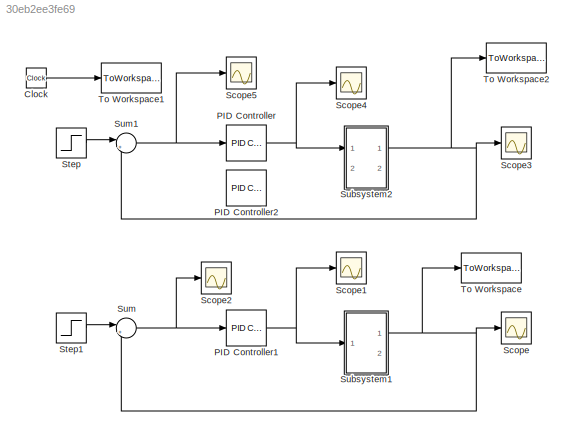
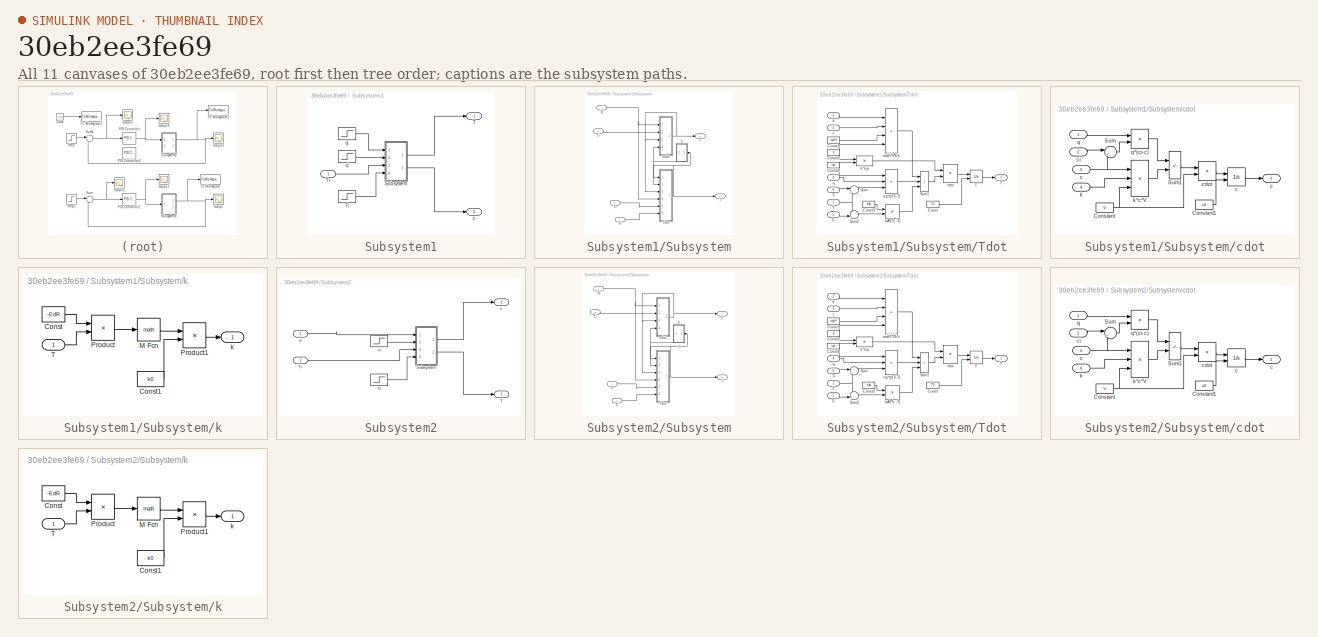
[diagram: thumbnail index - all 11 canvases of the model, root first then tree order]
MODEL slx_30eb2ee3fe69
KIND model
CONFIG AbsTol = auto
CONFIG EnableMultiTasking = off
CONFIG FixedStep = 0.001
CONFIG MaxStep = auto
CONFIG MinStep = auto
CONFIG RelTol = 1e-6
CONFIG SampleTimeConstraint = Unconstrained
CONFIG SolverName = FixedStepAuto
CONFIG StartTime = 0.0
CONFIG StopTime = 20
BLOCK [Clock] Clock
BLOCK [Reference] PID Controller  REF=pid_lib/PID Controller
  Ports = [1, 1]
  SourceBlock = pid_lib/PID Controller
  SourceProductBaseCode = SL
  SourceType = PID 1dof
BLOCK [Reference] PID Controller1  REF=pid_lib/PID Controller
  Ports = [1, 1]
  SourceBlock = pid_lib/PID Controller
  SourceProductBaseCode = SL
  SourceType = PID 1dof
BLOCK [Reference] PID Controller2  REF=pid_lib/PID Controller
  Ports = [1, 1]
  SourceBlock = pid_lib/PID Controller
  SourceProductBaseCode = SL
  SourceType = PID 1dof
BLOCK [Scope] Scope
  Floating = off
  NumInputPorts = 1
  Ports = [1]
  ScopeSpecificationString = Simulink.scopes.TimeScopeBlockCfg('CurrentConfiguration', extmgr.ConfigurationSet(extmgr.Configuration('Core','General UI',true),extmgr.Configuration('Core','Source UI',true),extmgr.Configuration('Sources','WiredSimulink',true,'DataLoggingSaveFormat','StructureWithTime','DataLoggingDecimation','1','DataLoggingDecimateData',true),extmgr.Configuration('Visuals','Time Domain',true,'SerializedDisplays...<+1740ch>
BLOCK [Scope] Scope1
  Floating = off
  NumInputPorts = 1
  Ports = [1]
  ScopeSpecificationString = Simulink.scopes.TimeScopeBlockCfg('CurrentConfiguration', extmgr.ConfigurationSet(extmgr.Configuration('Core','General UI',true),extmgr.Configuration('Core','Source UI',true),extmgr.Configuration('Sources','WiredSimulink',true,'DataLoggingSaveFormat','StructureWithTime','DataLoggingLimitDataPoints',true,'DataLoggingDecimation','1','DataLoggingDecimateData',true,'DataLoggingVariableName','ScopeData...<+1825ch>
BLOCK [Scope] Scope2
  Floating = off
  NumInputPorts = 1
  Ports = [1]
  ScopeSpecificationString = Simulink.scopes.TimeScopeBlockCfg('CurrentConfiguration', extmgr.ConfigurationSet(extmgr.Configuration('Core','General UI',true),extmgr.Configuration('Core','Source UI',true),extmgr.Configuration('Sources','WiredSimulink',true,'DataLoggingSaveFormat','StructureWithTime','DataLoggingLimitDataPoints',true,'DataLoggingDecimation','1','DataLoggingDecimateData',true,'DataLoggingVariableName','ScopeData...<+1811ch>
BLOCK [Scope] Scope3
  Floating = off
  NumInputPorts = 1
  Ports = [1]
  ScopeSpecificationString = Simulink.scopes.TimeScopeBlockCfg('CurrentConfiguration', extmgr.ConfigurationSet(extmgr.Configuration('Core','General UI',true),extmgr.Configuration('Core','Source UI',true),extmgr.Configuration('Sources','WiredSimulink',true,'DataLoggingSaveFormat','StructureWithTime','DataLoggingDecimation','1','DataLoggingDecimateData',true,'DataLoggingVariableName','ScopeData1'),extmgr.Configuration('Visuals'...<+1769ch>
BLOCK [Scope] Scope4
  Floating = off
  NumInputPorts = 1
  Ports = [1]
  ScopeSpecificationString = Simulink.scopes.TimeScopeBlockCfg('CurrentConfiguration', extmgr.ConfigurationSet(extmgr.Configuration('Core','General UI',true),extmgr.Configuration('Core','Source UI',true),extmgr.Configuration('Sources','WiredSimulink',true,'DataLoggingSaveFormat','StructureWithTime','DataLoggingLimitDataPoints',true,'DataLoggingDecimation','1','DataLoggingDecimateData',true,'DataLoggingVariableName','ScopeData...<+1817ch>
BLOCK [Scope] Scope5
  Floating = off
  NumInputPorts = 1
  Ports = [1]
  ScopeSpecificationString = Simulink.scopes.TimeScopeBlockCfg('CurrentConfiguration', extmgr.ConfigurationSet(extmgr.Configuration('Core','General UI',true),extmgr.Configuration('Core','Source UI',true),extmgr.Configuration('Sources','WiredSimulink',true,'DataLoggingSaveFormat','StructureWithTime','DataLoggingLimitDataPoints',true,'DataLoggingDecimation','1','DataLoggingDecimateData',true,'DataLoggingVariableName','ScopeData...<+1797ch>
BLOCK [Step] Step
  After = c0+0.1
  Before = c0
  SampleTime = 0
  Time = 0
BLOCK [Step] Step1
  After = c0+0.1
  Before = c0
  SampleTime = 0
  Time = 0
BLOCK [SubSystem] Subsystem1
  Ports = [1, 2]
  RequestExecContextInheritance = off
BLOCK [SubSystem] Subsystem1/Subsystem
  Ports = [4, 2]
  RequestExecContextInheritance = off
BLOCK [Outport] Subsystem1/Subsystem/T  
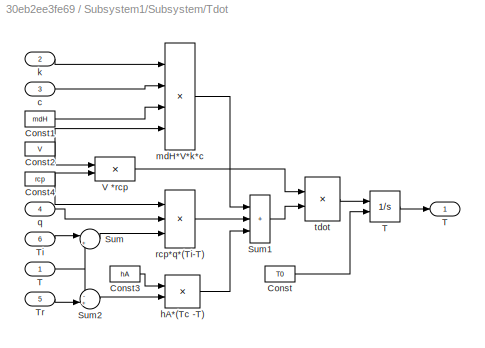
BLOCK [SubSystem] Subsystem1/Subsystem/Tdot
  Ports = [6, 1]
  RequestExecContextInheritance = off
BLOCK [Constant] Subsystem1/Subsystem/Tdot/Const
  Value = T0
BLOCK [Constant] Subsystem1/Subsystem/Tdot/Const1
  Value = mdH
BLOCK [Constant] Subsystem1/Subsystem/Tdot/Const2
  Value = V
BLOCK [Constant] Subsystem1/Subsystem/Tdot/Const3
  Value = hA
BLOCK [Constant] Subsystem1/Subsystem/Tdot/Const4
  Value = rcp
BLOCK [Sum] Subsystem1/Subsystem/Tdot/Sum
  InputSameDT = on
  Inputs = |+-
  OutDataTypeStr = Inherit: Same as first input
  Ports = [2, 1]
  SaturateOnIntegerOverflow = on
BLOCK [Sum] Subsystem1/Subsystem/Tdot/Sum1
  IconShape = rectangular
  InputSameDT = on
  Inputs = +++
  OutDataTypeStr = Inherit: Same as first input
  Ports = [3, 1]
  SaturateOnIntegerOverflow = on
BLOCK [Sum] Subsystem1/Subsystem/Tdot/Sum2
  InputSameDT = on
  Inputs = -+|
  OutDataTypeStr = Inherit: Same as first input
  Ports = [2, 1]
  SaturateOnIntegerOverflow = on
BLOCK [Inport] Subsystem1/Subsystem/Tdot/T
  Interpolate = off
  SignalType = real
BLOCK [Integrator] Subsystem1/Subsystem/Tdot/T 
  InitialConditionSource = external
  Ports = [2, 1]
BLOCK [Outport] Subsystem1/Subsystem/Tdot/T  
BLOCK [Inport] Subsystem1/Subsystem/Tdot/Ti
  Interpolate = off
  Port = 6
  SignalType = real
BLOCK [Inport] Subsystem1/Subsystem/Tdot/Tr
  Interpolate = off
  Port = 5
  SignalType = real
BLOCK [Product] Subsystem1/Subsystem/Tdot/V *rcp
  InputSameDT = on
  Inputs = **
  OutDataTypeStr = Inherit: Same as first input
  Ports = [2, 1]
  RndMeth = Zero
  SaturateOnIntegerOverflow = on
BLOCK [Inport] Subsystem1/Subsystem/Tdot/c
  Interpolate = off
  Port = 3
  SignalType = real
BLOCK [Product] Subsystem1/Subsystem/Tdot/hA*(Tc -T)
  InputSameDT = on
  Inputs = **
  OutDataTypeStr = Inherit: Same as first input
  Ports = [2, 1]
  RndMeth = Zero
  SaturateOnIntegerOverflow = on
BLOCK [Inport] Subsystem1/Subsystem/Tdot/k
  Interpolate = off
  Port = 2
  SignalType = real
BLOCK [Product] Subsystem1/Subsystem/Tdot/mdH*V*k*c
  InputSameDT = on
  Inputs = ****
  OutDataTypeStr = Inherit: Same as first input
  Ports = [4, 1]
  RndMeth = Zero
  SaturateOnIntegerOverflow = on
BLOCK [Inport] Subsystem1/Subsystem/Tdot/q
  Interpolate = off
  Port = 4
  SignalType = real
BLOCK [Product] Subsystem1/Subsystem/Tdot/rcp*q*(Ti-T)
  InputSameDT = on
  Inputs = ***
  OutDataTypeStr = Inherit: Same as first input
  Ports = [3, 1]
  RndMeth = Zero
  SaturateOnIntegerOverflow = on
BLOCK [Product] Subsystem1/Subsystem/Tdot/tdot
  InputSameDT = on
  Inputs = /*
  OutDataTypeStr = Inherit: Same as first input
  Ports = [2, 1]
  RndMeth = Zero
  SaturateOnIntegerOverflow = on
BLOCK [Inport] Subsystem1/Subsystem/Ti
  Port = 4
BLOCK [Inport] Subsystem1/Subsystem/Tr
  Port = 3
BLOCK [Outport] Subsystem1/Subsystem/c   
  Port = 2
BLOCK [SubSystem] Subsystem1/Subsystem/cdot
  Ports = [4, 1]
  RequestExecContextInheritance = off
BLOCK [Constant] Subsystem1/Subsystem/cdot/Constant
  Value = V
BLOCK [Constant] Subsystem1/Subsystem/cdot/Constant1
  Value = c0
BLOCK [Sum] Subsystem1/Subsystem/cdot/Sum
  InputSameDT = on
  Inputs = |+-
  OutDataTypeStr = Inherit: Same as first input
  Ports = [2, 1]
  SaturateOnIntegerOverflow = on
BLOCK [Sum] Subsystem1/Subsystem/cdot/Sum1
  IconShape = rectangular
  InputSameDT = on
  Inputs = +-
  OutDataTypeStr = Inherit: Same as first input
  Ports = [2, 1]
  SaturateOnIntegerOverflow = on
BLOCK [Outport] Subsystem1/Subsystem/cdot/c
BLOCK [Integrator] Subsystem1/Subsystem/cdot/c 
  InitialConditionSource = external
  Ports = [2, 1]
BLOCK [Inport] Subsystem1/Subsystem/cdot/c  
  Interpolate = off
  Port = 3
  SignalType = real
BLOCK [Product] Subsystem1/Subsystem/cdot/cdot
  InputSameDT = on
  Inputs = */
  OutDataTypeStr = Inherit: Same as first input
  Ports = [2, 1]
  RndMeth = Zero
  SaturateOnIntegerOverflow = on
BLOCK [Inport] Subsystem1/Subsystem/cdot/ci
  Interpolate = off
  Port = 2
  SignalType = real
BLOCK [Inport] Subsystem1/Subsystem/cdot/k
  Interpolate = off
  Port = 4
  SignalType = real
BLOCK [Product] Subsystem1/Subsystem/cdot/k*c*V
  InputSameDT = on
  Inputs = ***
  OutDataTypeStr = Inherit: Same as first input
  Ports = [3, 1]
  RndMeth = Zero
  SaturateOnIntegerOverflow = on
BLOCK [Inport] Subsystem1/Subsystem/cdot/q
  Interpolate = off
  SignalType = real
BLOCK [Product] Subsystem1/Subsystem/cdot/q*(ci-c)
  InputSameDT = on
  Inputs = **
  OutDataTypeStr = Inherit: Same as first input
  Ports = [2, 1]
  RndMeth = Zero
  SaturateOnIntegerOverflow = on
BLOCK [Inport] Subsystem1/Subsystem/ci
  Port = 2
BLOCK [SubSystem] Subsystem1/Subsystem/k
  Ports = [1, 1]
  RequestExecContextInheritance = off
BLOCK [Constant] Subsystem1/Subsystem/k/Const
  Value = -EdR
BLOCK [Constant] Subsystem1/Subsystem/k/Const1
  Value = k0
BLOCK [Math] Subsystem1/Subsystem/k/M Fcn
  Ports = [1, 1]
  SignedPower = on
BLOCK [Product] Subsystem1/Subsystem/k/Product
  InputSameDT = on
  Inputs = */
  OutDataTypeStr = Inherit: Same as first input
  Ports = [2, 1]
  RndMeth = Zero
  SaturateOnIntegerOverflow = on
BLOCK [Product] Subsystem1/Subsystem/k/Product1
  InputSameDT = on
  Inputs = **
  OutDataTypeStr = Inherit: Same as first input
  Ports = [2, 1]
  RndMeth = Zero
  SaturateOnIntegerOverflow = on
BLOCK [Inport] Subsystem1/Subsystem/k/T
  Interpolate = off
  SignalType = real
BLOCK [Outport] Subsystem1/Subsystem/k/k
BLOCK [Inport] Subsystem1/Subsystem/q
BLOCK [Outport] Subsystem1/T   
BLOCK [Step] Subsystem1/Ti
  After = Ti
  Before = Ti
  SampleTime = 0
  Time = 0
BLOCK [Inport] Subsystem1/Tr
BLOCK [Outport] Subsystem1/c     
  Port = 2
BLOCK [Step] Subsystem1/ci
  After = ci
  Before = ci
  SampleTime = 0
  Time = 0
BLOCK [Step] Subsystem1/q  
  After = q
  Before = q
  SampleTime = 0
  Time = 0
BLOCK [SubSystem] Subsystem2
  Ports = [2, 2]
  RequestExecContextInheritance = off
BLOCK [SubSystem] Subsystem2/Subsystem
  Ports = [4, 2]
  RequestExecContextInheritance = off
BLOCK [Outport] Subsystem2/Subsystem/T  
  Port = 2
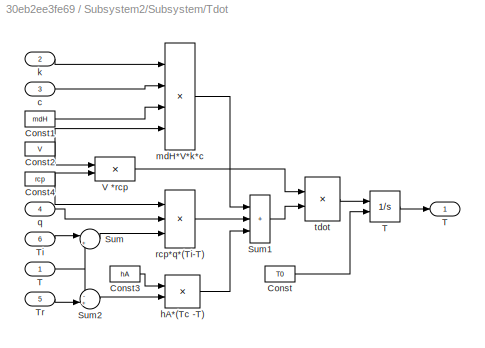
BLOCK [SubSystem] Subsystem2/Subsystem/Tdot
  Ports = [6, 1]
  RequestExecContextInheritance = off
BLOCK [Constant] Subsystem2/Subsystem/Tdot/Const
  Value = T0
BLOCK [Constant] Subsystem2/Subsystem/Tdot/Const1
  Value = mdH
BLOCK [Constant] Subsystem2/Subsystem/Tdot/Const2
  Value = V
BLOCK [Constant] Subsystem2/Subsystem/Tdot/Const3
  Value = hA
BLOCK [Constant] Subsystem2/Subsystem/Tdot/Const4
  Value = rcp
BLOCK [Sum] Subsystem2/Subsystem/Tdot/Sum
  InputSameDT = on
  Inputs = |+-
  OutDataTypeStr = Inherit: Same as first input
  Ports = [2, 1]
  SaturateOnIntegerOverflow = on
BLOCK [Sum] Subsystem2/Subsystem/Tdot/Sum1
  IconShape = rectangular
  InputSameDT = on
  Inputs = +++
  OutDataTypeStr = Inherit: Same as first input
  Ports = [3, 1]
  SaturateOnIntegerOverflow = on
BLOCK [Sum] Subsystem2/Subsystem/Tdot/Sum2
  InputSameDT = on
  Inputs = -+|
  OutDataTypeStr = Inherit: Same as first input
  Ports = [2, 1]
  SaturateOnIntegerOverflow = on
BLOCK [Inport] Subsystem2/Subsystem/Tdot/T
  Interpolate = off
  SignalType = real
BLOCK [Integrator] Subsystem2/Subsystem/Tdot/T 
  InitialConditionSource = external
  Ports = [2, 1]
BLOCK [Outport] Subsystem2/Subsystem/Tdot/T  
BLOCK [Inport] Subsystem2/Subsystem/Tdot/Ti
  Interpolate = off
  Port = 6
  SignalType = real
BLOCK [Inport] Subsystem2/Subsystem/Tdot/Tr
  Interpolate = off
  Port = 5
  SignalType = real
BLOCK [Product] Subsystem2/Subsystem/Tdot/V *rcp
  InputSameDT = on
  Inputs = **
  OutDataTypeStr = Inherit: Same as first input
  Ports = [2, 1]
  RndMeth = Zero
  SaturateOnIntegerOverflow = on
BLOCK [Inport] Subsystem2/Subsystem/Tdot/c
  Interpolate = off
  Port = 3
  SignalType = real
BLOCK [Product] Subsystem2/Subsystem/Tdot/hA*(Tc -T)
  InputSameDT = on
  Inputs = **
  OutDataTypeStr = Inherit: Same as first input
  Ports = [2, 1]
  RndMeth = Zero
  SaturateOnIntegerOverflow = on
BLOCK [Inport] Subsystem2/Subsystem/Tdot/k
  Interpolate = off
  Port = 2
  SignalType = real
BLOCK [Product] Subsystem2/Subsystem/Tdot/mdH*V*k*c
  InputSameDT = on
  Inputs = ****
  OutDataTypeStr = Inherit: Same as first input
  Ports = [4, 1]
  RndMeth = Zero
  SaturateOnIntegerOverflow = on
BLOCK [Inport] Subsystem2/Subsystem/Tdot/q
  Interpolate = off
  Port = 4
  SignalType = real
BLOCK [Product] Subsystem2/Subsystem/Tdot/rcp*q*(Ti-T)
  InputSameDT = on
  Inputs = ***
  OutDataTypeStr = Inherit: Same as first input
  Ports = [3, 1]
  RndMeth = Zero
  SaturateOnIntegerOverflow = on
BLOCK [Product] Subsystem2/Subsystem/Tdot/tdot
  InputSameDT = on
  Inputs = /*
  OutDataTypeStr = Inherit: Same as first input
  Ports = [2, 1]
  RndMeth = Zero
  SaturateOnIntegerOverflow = on
BLOCK [Inport] Subsystem2/Subsystem/Ti
  Port = 4
BLOCK [Inport] Subsystem2/Subsystem/Tr
  Port = 3
BLOCK [Outport] Subsystem2/Subsystem/c
BLOCK [SubSystem] Subsystem2/Subsystem/cdot
  Ports = [4, 1]
  RequestExecContextInheritance = off
BLOCK [Constant] Subsystem2/Subsystem/cdot/Constant
  Value = V
BLOCK [Constant] Subsystem2/Subsystem/cdot/Constant1
  Value = c0
BLOCK [Sum] Subsystem2/Subsystem/cdot/Sum
  InputSameDT = on
  Inputs = |+-
  OutDataTypeStr = Inherit: Same as first input
  Ports = [2, 1]
  SaturateOnIntegerOverflow = on
BLOCK [Sum] Subsystem2/Subsystem/cdot/Sum1
  IconShape = rectangular
  InputSameDT = on
  Inputs = +-
  OutDataTypeStr = Inherit: Same as first input
  Ports = [2, 1]
  SaturateOnIntegerOverflow = on
BLOCK [Outport] Subsystem2/Subsystem/cdot/c
BLOCK [Integrator] Subsystem2/Subsystem/cdot/c 
  InitialConditionSource = external
  Ports = [2, 1]
BLOCK [Inport] Subsystem2/Subsystem/cdot/c  
  Interpolate = off
  Port = 3
  SignalType = real
BLOCK [Product] Subsystem2/Subsystem/cdot/cdot
  InputSameDT = on
  Inputs = */
  OutDataTypeStr = Inherit: Same as first input
  Ports = [2, 1]
  RndMeth = Zero
  SaturateOnIntegerOverflow = on
BLOCK [Inport] Subsystem2/Subsystem/cdot/ci
  Interpolate = off
  Port = 2
  SignalType = real
BLOCK [Inport] Subsystem2/Subsystem/cdot/k
  Interpolate = off
  Port = 4
  SignalType = real
BLOCK [Product] Subsystem2/Subsystem/cdot/k*c*V
  InputSameDT = on
  Inputs = ***
  OutDataTypeStr = Inherit: Same as first input
  Ports = [3, 1]
  RndMeth = Zero
  SaturateOnIntegerOverflow = on
BLOCK [Inport] Subsystem2/Subsystem/cdot/q
  Interpolate = off
  SignalType = real
BLOCK [Product] Subsystem2/Subsystem/cdot/q*(ci-c)
  InputSameDT = on
  Inputs = **
  OutDataTypeStr = Inherit: Same as first input
  Ports = [2, 1]
  RndMeth = Zero
  SaturateOnIntegerOverflow = on
BLOCK [Inport] Subsystem2/Subsystem/ci
  Port = 2
BLOCK [SubSystem] Subsystem2/Subsystem/k
  Ports = [1, 1]
  RequestExecContextInheritance = off
BLOCK [Constant] Subsystem2/Subsystem/k/Const
  Value = -EdR
BLOCK [Constant] Subsystem2/Subsystem/k/Const1
  Value = k0
BLOCK [Math] Subsystem2/Subsystem/k/M Fcn
  Ports = [1, 1]
  SignedPower = on
BLOCK [Product] Subsystem2/Subsystem/k/Product
  InputSameDT = on
  Inputs = */
  OutDataTypeStr = Inherit: Same as first input
  Ports = [2, 1]
  RndMeth = Zero
  SaturateOnIntegerOverflow = on
BLOCK [Product] Subsystem2/Subsystem/k/Product1
  InputSameDT = on
  Inputs = **
  OutDataTypeStr = Inherit: Same as first input
  Ports = [2, 1]
  RndMeth = Zero
  SaturateOnIntegerOverflow = on
BLOCK [Inport] Subsystem2/Subsystem/k/T
  Interpolate = off
  SignalType = real
BLOCK [Outport] Subsystem2/Subsystem/k/k
BLOCK [Inport] Subsystem2/Subsystem/q
BLOCK [Outport] Subsystem2/T  
  Port = 2
BLOCK [Step] Subsystem2/Ti
  After = Ti
  Before = Ti
  SampleTime = 0
  Time = 0
BLOCK [Inport] Subsystem2/Tr
  Port = 2
BLOCK [Outport] Subsystem2/c
BLOCK [Step] Subsystem2/ci
  After = ci
  Before = ci
  SampleTime = 0
  Time = 0
BLOCK [Inport] Subsystem2/q
BLOCK [Sum] Sum
  InputSameDT = on
  Inputs = |+-
  OutDataTypeStr = Inherit: Same as first input
  Ports = [2, 1]
  SaturateOnIntegerOverflow = on
BLOCK [Sum] Sum1
  InputSameDT = on
  Inputs = |+-
  OutDataTypeStr = Inherit: Same as first input
  Ports = [2, 1]
  SaturateOnIntegerOverflow = on
BLOCK [ToWorkspace] To Workspace
  MaxDataPoints = inf
  Ports = [1]
  SampleTime = -1
  VariableName = Tsim
BLOCK [ToWorkspace] To Workspace1
  MaxDataPoints = inf
  Ports = [1]
  SampleTime = -1
  VariableName = t
BLOCK [ToWorkspace] To Workspace2
  MaxDataPoints = inf
  Ports = [1]
  SampleTime = -1
  VariableName = y1
ANNOTATION Subsystem1/Subsystem: K
ANNOTATION Subsystem2/Subsystem: K
LINE Clock:1 -> To Workspace1:1
NET PID Controller1:1 -> Scope1:1, Subsystem1:1
NET PID Controller:1 -> Scope4:1, Subsystem2:1
LINE Step1:1 -> Sum:1
LINE Step:1 -> Sum1:1
LINE Subsystem1/Subsystem/Tdot/Const1:1 -> Subsystem1/Subsystem/Tdot/mdH*V*k*c:3
NET Subsystem1/Subsystem/Tdot/Const2:1 -> Subsystem1/Subsystem/Tdot/V *rcp:1, Subsystem1/Subsystem/Tdot/mdH*V*k*c:4
LINE Subsystem1/Subsystem/Tdot/Const3:1 -> Subsystem1/Subsystem/Tdot/hA*(Tc -T):1
NET Subsystem1/Subsystem/Tdot/Const4:1 -> Subsystem1/Subsystem/Tdot/V *rcp:2, Subsystem1/Subsystem/Tdot/rcp*q*(Ti-T):1
LINE Subsystem1/Subsystem/Tdot/Const:1 -> Subsystem1/Subsystem/Tdot/T :2
LINE Subsystem1/Subsystem/Tdot/Sum1:1 -> Subsystem1/Subsystem/Tdot/tdot:2
LINE Subsystem1/Subsystem/Tdot/Sum2:1 -> Subsystem1/Subsystem/Tdot/hA*(Tc -T):2
LINE Subsystem1/Subsystem/Tdot/Sum:1 -> Subsystem1/Subsystem/Tdot/rcp*q*(Ti-T):3
LINE Subsystem1/Subsystem/Tdot/T :1 -> Subsystem1/Subsystem/Tdot/T  :1
NET Subsystem1/Subsystem/Tdot/T:1 -> Subsystem1/Subsystem/Tdot/Sum2:1, Subsystem1/Subsystem/Tdot/Sum:2
LINE Subsystem1/Subsystem/Tdot/Ti:1 -> Subsystem1/Subsystem/Tdot/Sum:1
LINE Subsystem1/Subsystem/Tdot/Tr:1 -> Subsystem1/Subsystem/Tdot/Sum2:2
LINE Subsystem1/Subsystem/Tdot/V *rcp:1 -> Subsystem1/Subsystem/Tdot/tdot:1
LINE Subsystem1/Subsystem/Tdot/c:1 -> Subsystem1/Subsystem/Tdot/mdH*V*k*c:2
LINE Subsystem1/Subsystem/Tdot/hA*(Tc -T):1 -> Subsystem1/Subsystem/Tdot/Sum1:3
LINE Subsystem1/Subsystem/Tdot/k:1 -> Subsystem1/Subsystem/Tdot/mdH*V*k*c:1
LINE Subsystem1/Subsystem/Tdot/mdH*V*k*c:1 -> Subsystem1/Subsystem/Tdot/Sum1:1
LINE Subsystem1/Subsystem/Tdot/q:1 -> Subsystem1/Subsystem/Tdot/rcp*q*(Ti-T):2
LINE Subsystem1/Subsystem/Tdot/rcp*q*(Ti-T):1 -> Subsystem1/Subsystem/Tdot/Sum1:2
LINE Subsystem1/Subsystem/Tdot/tdot:1 -> Subsystem1/Subsystem/Tdot/T :1
NET Subsystem1/Subsystem/Tdot:1 -> Subsystem1/Subsystem/T  :1, Subsystem1/Subsystem/Tdot:1, Subsystem1/Subsystem/k:1
LINE Subsystem1/Subsystem/Ti:1 -> Subsystem1/Subsystem/Tdot:6
LINE Subsystem1/Subsystem/Tr:1 -> Subsystem1/Subsystem/Tdot:5
LINE Subsystem1/Subsystem/cdot/Constant1:1 -> Subsystem1/Subsystem/cdot/c :2
NET Subsystem1/Subsystem/cdot/Constant:1 -> Subsystem1/Subsystem/cdot/cdot:2, Subsystem1/Subsystem/cdot/k*c*V:3
LINE Subsystem1/Subsystem/cdot/Sum1:1 -> Subsystem1/Subsystem/cdot/cdot:1
LINE Subsystem1/Subsystem/cdot/Sum:1 -> Subsystem1/Subsystem/cdot/q*(ci-c):2
NET Subsystem1/Subsystem/cdot/c  :1 -> Subsystem1/Subsystem/cdot/Sum:2, Subsystem1/Subsystem/cdot/k*c*V:1
LINE Subsystem1/Subsystem/cdot/c :1 -> Subsystem1/Subsystem/cdot/c:1
LINE Subsystem1/Subsystem/cdot/cdot:1 -> Subsystem1/Subsystem/cdot/c :1
LINE Subsystem1/Subsystem/cdot/ci:1 -> Subsystem1/Subsystem/cdot/Sum:1
LINE Subsystem1/Subsystem/cdot/k*c*V:1 -> Subsystem1/Subsystem/cdot/Sum1:2
LINE Subsystem1/Subsystem/cdot/k:1 -> Subsystem1/Subsystem/cdot/k*c*V:2
LINE Subsystem1/Subsystem/cdot/q*(ci-c):1 -> Subsystem1/Subsystem/cdot/Sum1:1
LINE Subsystem1/Subsystem/cdot/q:1 -> Subsystem1/Subsystem/cdot/q*(ci-c):1
NET Subsystem1/Subsystem/cdot:1 -> Subsystem1/Subsystem/Tdot:3, Subsystem1/Subsystem/c   :1, Subsystem1/Subsystem/cdot:3
LINE Subsystem1/Subsystem/ci:1 -> Subsystem1/Subsystem/cdot:2
LINE Subsystem1/Subsystem/k/Const1:1 -> Subsystem1/Subsystem/k/Product1:2
LINE Subsystem1/Subsystem/k/Const:1 -> Subsystem1/Subsystem/k/Product:1
LINE Subsystem1/Subsystem/k/M Fcn:1 -> Subsystem1/Subsystem/k/Product1:1
LINE Subsystem1/Subsystem/k/Product1:1 -> Subsystem1/Subsystem/k/k:1
LINE Subsystem1/Subsystem/k/Product:1 -> Subsystem1/Subsystem/k/M Fcn:1
LINE Subsystem1/Subsystem/k/T:1 -> Subsystem1/Subsystem/k/Product:2
NET Subsystem1/Subsystem/k:1 -> Subsystem1/Subsystem/Tdot:2, Subsystem1/Subsystem/cdot:4
NET Subsystem1/Subsystem/q:1 -> Subsystem1/Subsystem/Tdot:4, Subsystem1/Subsystem/cdot:1
LINE Subsystem1/Subsystem:1 -> Subsystem1/T   :1
LINE Subsystem1/Subsystem:2 -> Subsystem1/c     :1
LINE Subsystem1/Ti:1 -> Subsystem1/Subsystem:4
LINE Subsystem1/Tr:1 -> Subsystem1/Subsystem:3
LINE Subsystem1/ci:1 -> Subsystem1/Subsystem:2
LINE Subsystem1/q  :1 -> Subsystem1/Subsystem:1
NET Subsystem1:1 -> Scope:1, Sum:2, To Workspace:1
LINE Subsystem2/Subsystem/Tdot/Const1:1 -> Subsystem2/Subsystem/Tdot/mdH*V*k*c:3
NET Subsystem2/Subsystem/Tdot/Const2:1 -> Subsystem2/Subsystem/Tdot/V *rcp:1, Subsystem2/Subsystem/Tdot/mdH*V*k*c:4
LINE Subsystem2/Subsystem/Tdot/Const3:1 -> Subsystem2/Subsystem/Tdot/hA*(Tc -T):1
NET Subsystem2/Subsystem/Tdot/Const4:1 -> Subsystem2/Subsystem/Tdot/V *rcp:2, Subsystem2/Subsystem/Tdot/rcp*q*(Ti-T):1
LINE Subsystem2/Subsystem/Tdot/Const:1 -> Subsystem2/Subsystem/Tdot/T :2
LINE Subsystem2/Subsystem/Tdot/Sum1:1 -> Subsystem2/Subsystem/Tdot/tdot:2
LINE Subsystem2/Subsystem/Tdot/Sum2:1 -> Subsystem2/Subsystem/Tdot/hA*(Tc -T):2
LINE Subsystem2/Subsystem/Tdot/Sum:1 -> Subsystem2/Subsystem/Tdot/rcp*q*(Ti-T):3
LINE Subsystem2/Subsystem/Tdot/T :1 -> Subsystem2/Subsystem/Tdot/T  :1
NET Subsystem2/Subsystem/Tdot/T:1 -> Subsystem2/Subsystem/Tdot/Sum2:1, Subsystem2/Subsystem/Tdot/Sum:2
LINE Subsystem2/Subsystem/Tdot/Ti:1 -> Subsystem2/Subsystem/Tdot/Sum:1
LINE Subsystem2/Subsystem/Tdot/Tr:1 -> Subsystem2/Subsystem/Tdot/Sum2:2
LINE Subsystem2/Subsystem/Tdot/V *rcp:1 -> Subsystem2/Subsystem/Tdot/tdot:1
LINE Subsystem2/Subsystem/Tdot/c:1 -> Subsystem2/Subsystem/Tdot/mdH*V*k*c:2
LINE Subsystem2/Subsystem/Tdot/hA*(Tc -T):1 -> Subsystem2/Subsystem/Tdot/Sum1:3
LINE Subsystem2/Subsystem/Tdot/k:1 -> Subsystem2/Subsystem/Tdot/mdH*V*k*c:1
LINE Subsystem2/Subsystem/Tdot/mdH*V*k*c:1 -> Subsystem2/Subsystem/Tdot/Sum1:1
LINE Subsystem2/Subsystem/Tdot/q:1 -> Subsystem2/Subsystem/Tdot/rcp*q*(Ti-T):2
LINE Subsystem2/Subsystem/Tdot/rcp*q*(Ti-T):1 -> Subsystem2/Subsystem/Tdot/Sum1:2
LINE Subsystem2/Subsystem/Tdot/tdot:1 -> Subsystem2/Subsystem/Tdot/T :1
NET Subsystem2/Subsystem/Tdot:1 -> Subsystem2/Subsystem/T  :1, Subsystem2/Subsystem/Tdot:1, Subsystem2/Subsystem/k:1
LINE Subsystem2/Subsystem/Ti:1 -> Subsystem2/Subsystem/Tdot:6
LINE Subsystem2/Subsystem/Tr:1 -> Subsystem2/Subsystem/Tdot:5
LINE Subsystem2/Subsystem/cdot/Constant1:1 -> Subsystem2/Subsystem/cdot/c :2
NET Subsystem2/Subsystem/cdot/Constant:1 -> Subsystem2/Subsystem/cdot/cdot:2, Subsystem2/Subsystem/cdot/k*c*V:3
LINE Subsystem2/Subsystem/cdot/Sum1:1 -> Subsystem2/Subsystem/cdot/cdot:1
LINE Subsystem2/Subsystem/cdot/Sum:1 -> Subsystem2/Subsystem/cdot/q*(ci-c):2
NET Subsystem2/Subsystem/cdot/c  :1 -> Subsystem2/Subsystem/cdot/Sum:2, Subsystem2/Subsystem/cdot/k*c*V:1
LINE Subsystem2/Subsystem/cdot/c :1 -> Subsystem2/Subsystem/cdot/c:1
LINE Subsystem2/Subsystem/cdot/cdot:1 -> Subsystem2/Subsystem/cdot/c :1
LINE Subsystem2/Subsystem/cdot/ci:1 -> Subsystem2/Subsystem/cdot/Sum:1
LINE Subsystem2/Subsystem/cdot/k*c*V:1 -> Subsystem2/Subsystem/cdot/Sum1:2
LINE Subsystem2/Subsystem/cdot/k:1 -> Subsystem2/Subsystem/cdot/k*c*V:2
LINE Subsystem2/Subsystem/cdot/q*(ci-c):1 -> Subsystem2/Subsystem/cdot/Sum1:1
LINE Subsystem2/Subsystem/cdot/q:1 -> Subsystem2/Subsystem/cdot/q*(ci-c):1
NET Subsystem2/Subsystem/cdot:1 -> Subsystem2/Subsystem/Tdot:3, Subsystem2/Subsystem/c:1, Subsystem2/Subsystem/cdot:3
LINE Subsystem2/Subsystem/ci:1 -> Subsystem2/Subsystem/cdot:2
LINE Subsystem2/Subsystem/k/Const1:1 -> Subsystem2/Subsystem/k/Product1:2
LINE Subsystem2/Subsystem/k/Const:1 -> Subsystem2/Subsystem/k/Product:1
LINE Subsystem2/Subsystem/k/M Fcn:1 -> Subsystem2/Subsystem/k/Product1:1
LINE Subsystem2/Subsystem/k/Product1:1 -> Subsystem2/Subsystem/k/k:1
LINE Subsystem2/Subsystem/k/Product:1 -> Subsystem2/Subsystem/k/M Fcn:1
LINE Subsystem2/Subsystem/k/T:1 -> Subsystem2/Subsystem/k/Product:2
NET Subsystem2/Subsystem/k:1 -> Subsystem2/Subsystem/Tdot:2, Subsystem2/Subsystem/cdot:4
NET Subsystem2/Subsystem/q:1 -> Subsystem2/Subsystem/Tdot:4, Subsystem2/Subsystem/cdot:1
LINE Subsystem2/Subsystem:1 -> Subsystem2/c:1
LINE Subsystem2/Subsystem:2 -> Subsystem2/T  :1
LINE Subsystem2/Ti:1 -> Subsystem2/Subsystem:4
LINE Subsystem2/Tr:1 -> Subsystem2/Subsystem:3
LINE Subsystem2/ci:1 -> Subsystem2/Subsystem:2
LINE Subsystem2/q:1 -> Subsystem2/Subsystem:1
NET Subsystem2:1 -> Scope3:1, Sum1:2, To Workspace2:1
NET Sum1:1 -> PID Controller:1, Scope5:1
NET Sum:1 -> PID Controller1:1, Scope2:1
note: NET lines group one-source signal fan-out (src -> all destinations, sorted); 1:1 wires keep LINE
